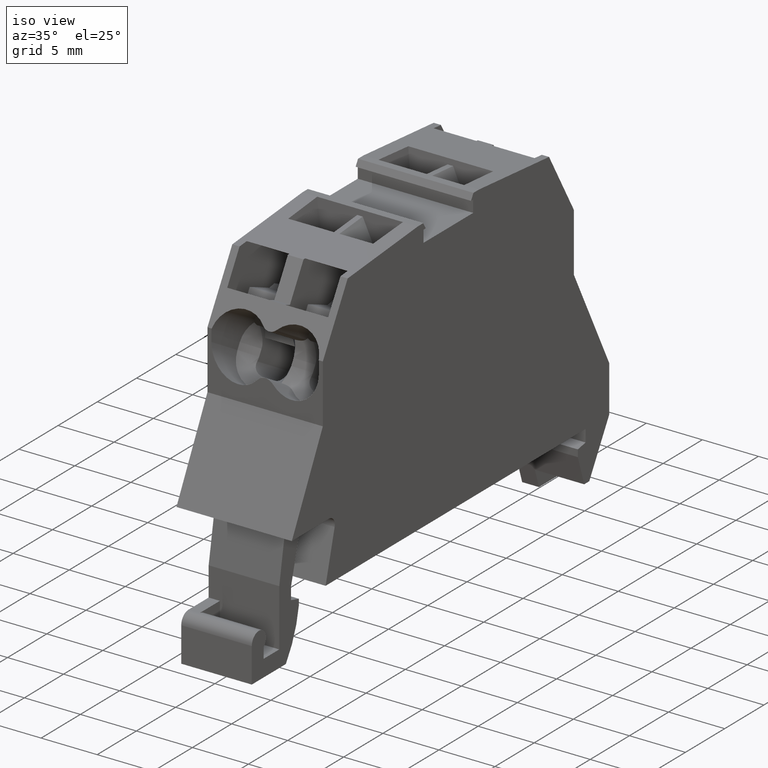
[diagram: clean part render]
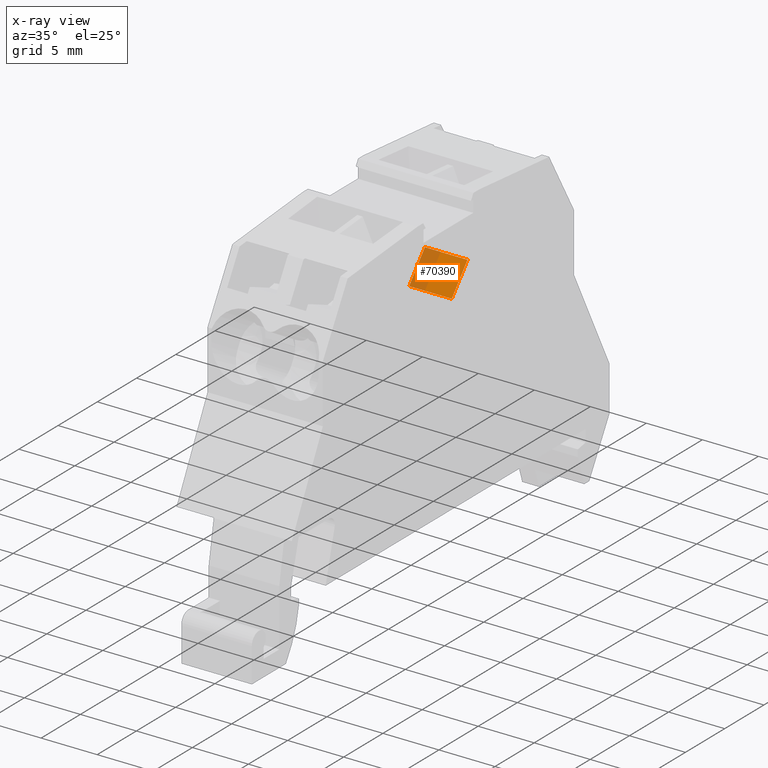
[diagram: x-ray — body ghosted, one internal face saturated and labeled with its STEP entity id]
A machine part, iso view, then the same camera in x-ray: the body is ghosted and one INTERNAL B-rep face — a face not visible from any outside direction — is saturated and labeled: STEP entity #70390.
In plain terms, the highlighted planar face has unit normal (-0, -0.766, 0.6428).
Its self-contained STEP definition (entity closure, byte-faithful):
#22630=CARTESIAN_POINT('',(67.6822900116607,119.446196627125,
0.249999999999988));
#22640=VERTEX_POINT('',#22630);
#22670=CARTESIAN_POINT('',(75.5868830472055,120.839989650805,
0.250000000000147));
#22680=DIRECTION('',(0.984807753012358,0.173648177666084,
1.46948570640383E-16));
#22690=VECTOR('',#22680,1.);
#22700=LINE('',#22670,#22690);
#22710=CARTESIAN_POINT('',(70.7414466917128,119.98560848803,
0.249999999999988));
#22720=VERTEX_POINT('',#22710);
#22730=EDGE_CURVE('',#22640,#22720,#22700,.T.);
#67170=CARTESIAN_POINT('',(67.6822900116596,119.446196627125,
9.59999999999999));
#67180=DIRECTION('',(1.72985085785778E-16,-7.12974335612007E-17,-1.));
#67190=VECTOR('',#67180,1.);
#67200=LINE('',#67170,#67190);
#67210=CARTESIAN_POINT('',(67.6822900116598,119.446196627124,
4.04999999999999));
#67220=VERTEX_POINT('',#67210);
#67230=EDGE_CURVE('',#67220,#22640,#67200,.T.);
#70160=CARTESIAN_POINT('',(70.7414466917128,119.98560848803,
9.25000000000015));
#70170=DIRECTION('',(-0.173648177666084,0.984807753012357,
-1.00252810251065E-16));
#70180=DIRECTION('',(0.984807753012358,0.173648177666084,
1.55180323229351E-16));
#70190=AXIS2_PLACEMENT_3D('',#70160,#70170,#70180);
#70200=PLANE('',#70190);
#70210=CARTESIAN_POINT('',(75.5868830472055,120.839989650805,
4.05000000000015));
#70220=DIRECTION('',(-0.984807753012358,-0.173648177666084,
-1.46948570640383E-16));
#70230=VECTOR('',#70220,1.);
#70240=LINE('',#70210,#70230);
#70250=CARTESIAN_POINT('',(70.7414466917128,119.98560848803,
4.04999999999999));
#70260=VERTEX_POINT('',#70250);
#70270=EDGE_CURVE('',#70260,#67220,#70240,.T.);
#70280=ORIENTED_EDGE('',*,*,#70270,.T.);
#70290=CARTESIAN_POINT('',(70.741446691713,119.98560848803,
9.59999999999999));
#70300=DIRECTION('',(1.70231503237277E-16,-7.17829644581069E-17,-1.));
#70310=VECTOR('',#70300,1.);
#70320=LINE('',#70290,#70310);
#70330=EDGE_CURVE('',#70260,#22720,#70320,.T.);
#70340=ORIENTED_EDGE('',*,*,#70330,.F.);
#70350=ORIENTED_EDGE('',*,*,#22730,.T.);
#70360=ORIENTED_EDGE('',*,*,#67230,.T.);
#70370=EDGE_LOOP('',(#70360,#70350,#70340,#70280));
#70380=FACE_OUTER_BOUND('',#70370,.T.);
#70390=ADVANCED_FACE('',(#70380),#70200,.F.);